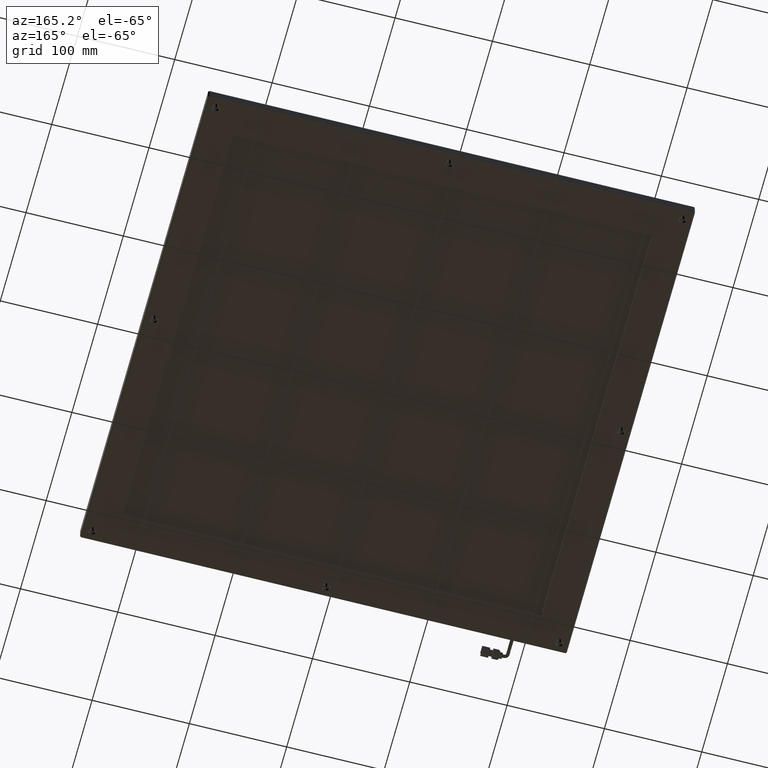
[diagram: clean part render]
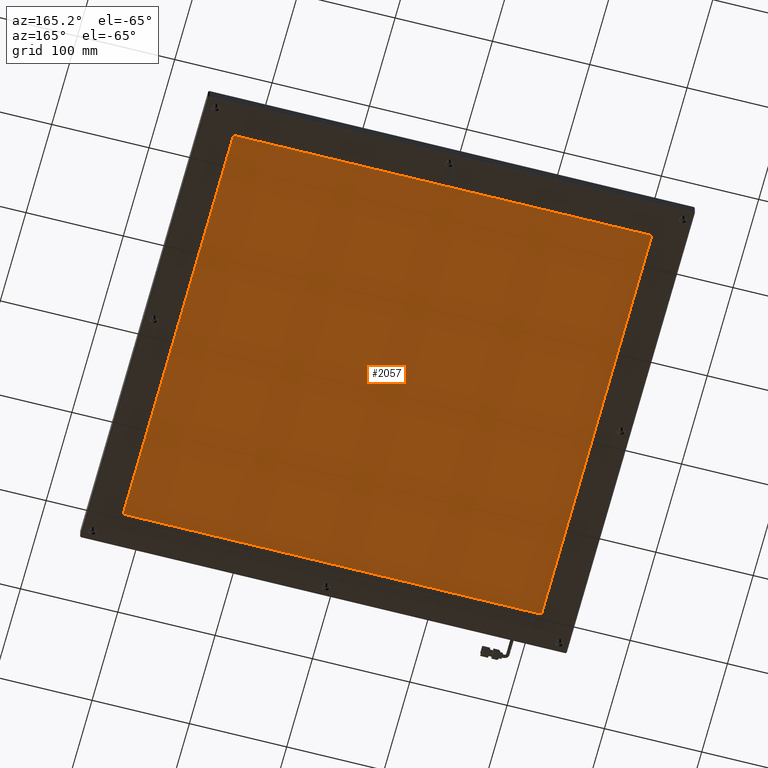
[diagram: same view with one face highlighted and labeled with its STEP entity id]
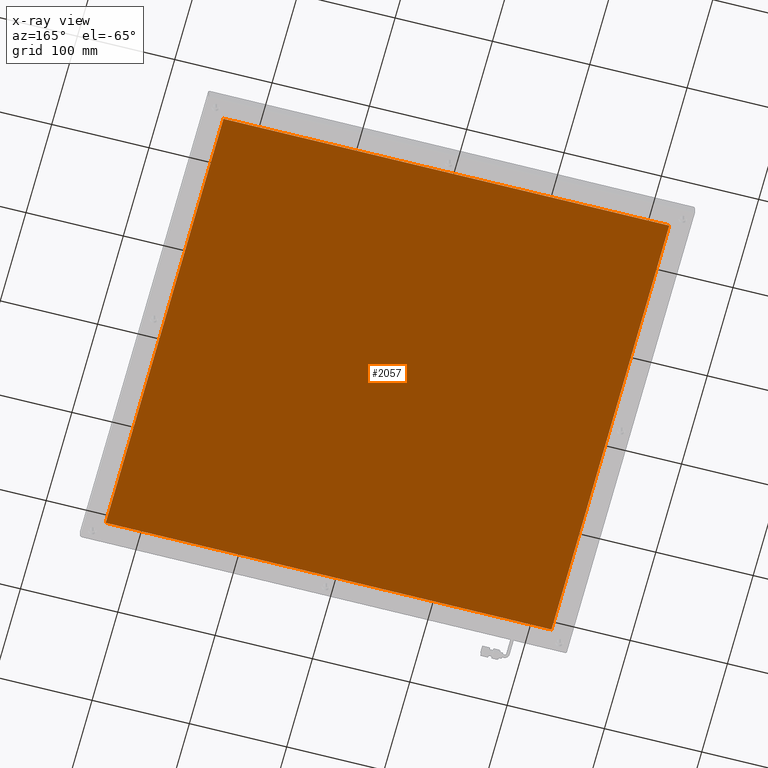
[diagram: x-ray of the same camera — body ghosted, the highlighted face saturated]
A machine part, auxiliary view. The second image highlights one B-rep face of the part: STEP entity #2057.
The next image is the same camera in x-ray: the body ghosted, the highlighted face saturated — about 0% of this face is hidden behind the body in this view.
In plain terms, the highlighted planar face has unit normal (0, 0, -1).
Its self-contained STEP definition (entity closure, byte-faithful):
#1472 = LINE ( 'NONE', #3927, #16444 ) ;
#1480 = ORIENTED_EDGE ( 'NONE', *, *, #18405, .T. ) ;
#2057 = ADVANCED_FACE ( 'NONE', ( #13848 ), #10398, .T. ) ;
#2796 = ORIENTED_EDGE ( 'NONE', *, *, #19983, .T. ) ;
#3927 = CARTESIAN_POINT ( 'NONE',  ( -222.9711023082942900, -214.3025821596242800, -3.000000000000000900 ) ) ;
#4780 = VECTOR ( 'NONE', #5479, 1000.000000000000000 ) ;
#5201 = VECTOR ( 'NONE', #15978, 1000.000000000000000 ) ;
#5479 = DIRECTION ( 'NONE',  ( 1.000000000000000000, 0.0000000000000000000, 0.0000000000000000000 ) ) ;
#5926 = CARTESIAN_POINT ( 'NONE',  ( 235.0288976917057400, 243.6974178403757500, -3.000000000000000900 ) ) ;
#7791 = VERTEX_POINT ( 'NONE', #5926 ) ;
#8556 = EDGE_CURVE ( 'NONE', #8934, #7791, #15140, .T. ) ;
#8934 = VERTEX_POINT ( 'NONE', #24456 ) ;
#9277 = CARTESIAN_POINT ( 'NONE',  ( -222.9711023082942900, 243.6974178403757500, -3.000000000000000900 ) ) ;
#10398 = PLANE ( 'NONE',  #14174 ) ;
#10834 = VECTOR ( 'NONE', #19320, 1000.000000000000000 ) ;
#11428 = CARTESIAN_POINT ( 'NONE',  ( -222.9711023082942900, -214.3025821596242800, -3.000000000000000900 ) ) ;
#11460 = LINE ( 'NONE', #11428, #10834 ) ;
#11622 = CARTESIAN_POINT ( 'NONE',  ( 235.0288976917057400, -214.3025821596242800, -3.000000000000000900 ) ) ;
#11888 = CARTESIAN_POINT ( 'NONE',  ( 235.0288976917056200, 243.6974178403757500, -3.000000000000000900 ) ) ;
#12135 = DIRECTION ( 'NONE',  ( 0.0000000000000000000, 0.0000000000000000000, -1.000000000000000000 ) ) ;
#12291 = DIRECTION ( 'NONE',  ( -1.000000000000000000, 0.0000000000000000000, -0.0000000000000000000 ) ) ;
#12579 = VERTEX_POINT ( 'NONE', #11622 ) ;
#13848 = FACE_OUTER_BOUND ( 'NONE', #23194, .T. ) ;
#14174 = AXIS2_PLACEMENT_3D ( 'NONE', #11888, #12135, #12291 ) ;
#15140 = LINE ( 'NONE', #9277, #4780 ) ;
#15978 = DIRECTION ( 'NONE',  ( -0.0000000000000000000, -1.000000000000000000, 0.0000000000000000000 ) ) ;
#16444 = VECTOR ( 'NONE', #17556, 1000.000000000000000 ) ;
#17419 = EDGE_CURVE ( 'NONE', #24587, #8934, #1472, .T. ) ;
#17556 = DIRECTION ( 'NONE',  ( -0.0000000000000000000, 1.000000000000000000, 0.0000000000000000000 ) ) ;
#18405 = EDGE_CURVE ( 'NONE', #12579, #24587, #11460, .T. ) ;
#18924 = LINE ( 'NONE', #19898, #5201 ) ;
#19320 = DIRECTION ( 'NONE',  ( -1.000000000000000000, -0.0000000000000000000, 0.0000000000000000000 ) ) ;
#19756 = ORIENTED_EDGE ( 'NONE', *, *, #8556, .T. ) ;
#19898 = CARTESIAN_POINT ( 'NONE',  ( 235.0288976917057400, -214.3025821596242800, -3.000000000000000900 ) ) ;
#19918 = CARTESIAN_POINT ( 'NONE',  ( -222.9711023082942900, -214.3025821596242800, -3.000000000000000900 ) ) ;
#19983 = EDGE_CURVE ( 'NONE', #7791, #12579, #18924, .T. ) ;
#23194 = EDGE_LOOP ( 'NONE', ( #25129, #19756, #2796, #1480 ) ) ;
#24456 = CARTESIAN_POINT ( 'NONE',  ( -222.9711023082942900, 243.6974178403757500, -3.000000000000000900 ) ) ;
#24587 = VERTEX_POINT ( 'NONE', #19918 ) ;
#25129 = ORIENTED_EDGE ( 'NONE', *, *, #17419, .T. ) ;